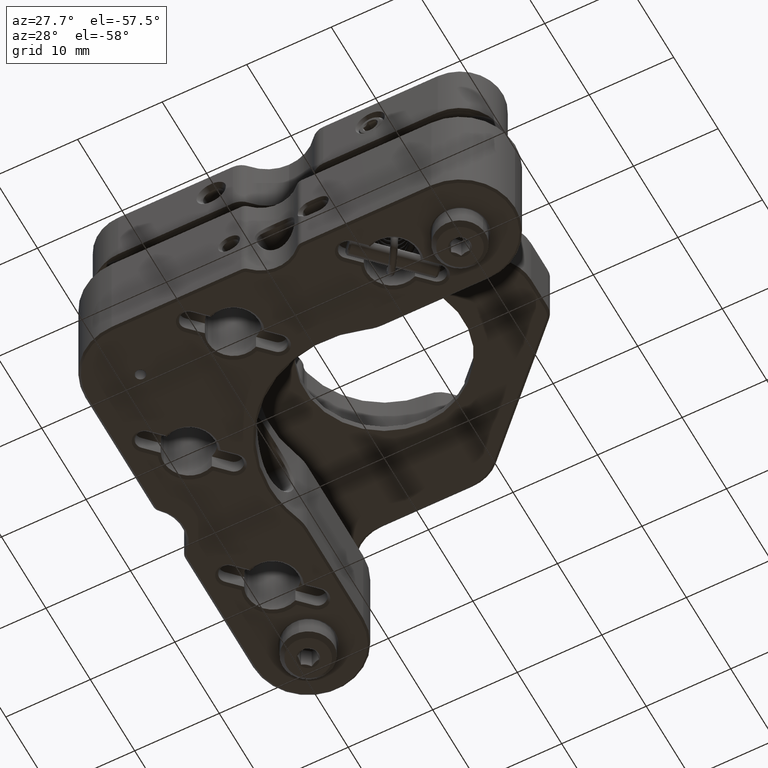
[diagram: clean part render]
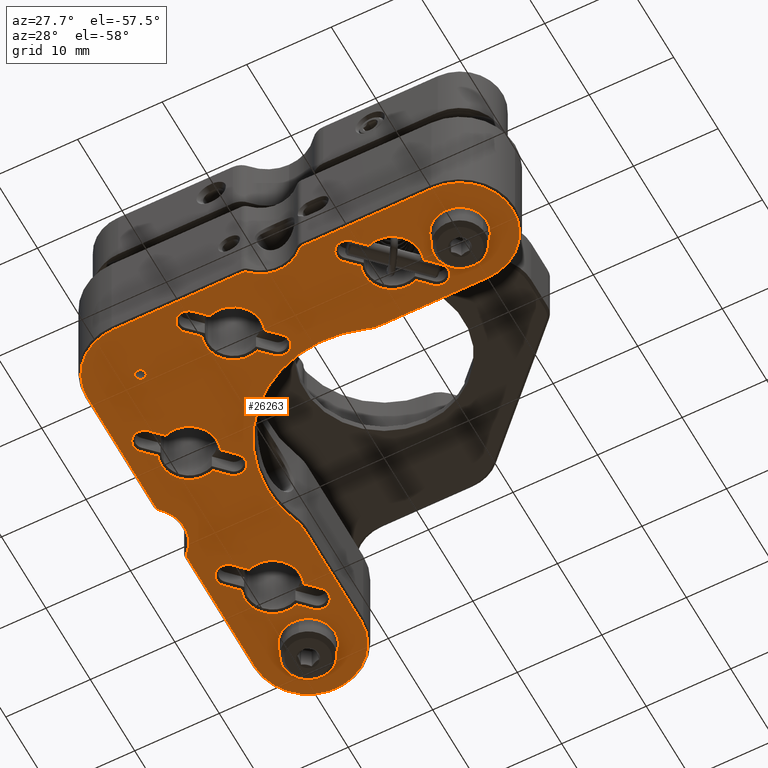
[diagram: same view with one face highlighted and labeled with its STEP entity id]
A machine part, auxiliary view. The second image highlights one B-rep face of the part: STEP entity #26263.
In plain terms, the highlighted planar face has unit normal (0, 0, 1).
Its self-contained STEP definition (entity closure, byte-faithful):
#39 = VERTEX_POINT ( 'NONE', #18534 ) ;
#43 = ORIENTED_EDGE ( 'NONE', *, *, #18699, .T. ) ;
#75 = CARTESIAN_POINT ( 'NONE',  ( -21.98385458958858507, -9.074666280384898087, -6.349999999999999645 ) ) ;
#86 = DIRECTION ( 'NONE',  ( 1.000000000000000000, 0.000000000000000000, 0.000000000000000000 ) ) ;
#104 = DIRECTION ( 'NONE',  ( 1.000000000000000000, 2.593992276867313395E-16, 0.000000000000000000 ) ) ;
#120 = AXIS2_PLACEMENT_3D ( 'NONE', #20159, #19590, #13066 ) ;
#130 = VERTEX_POINT ( 'NONE', #4482 ) ;
#141 = PLANE ( 'NONE',  #25660 ) ;
#160 = LINE ( 'NONE', #26552, #2385 ) ;
#174 = EDGE_LOOP ( 'NONE', ( #25861, #5768 ) ) ;
#222 = EDGE_CURVE ( 'NONE', #13770, #3741, #6745, .T. ) ;
#235 = AXIS2_PLACEMENT_3D ( 'NONE', #25467, #25609, #8707 ) ;
#236 = DIRECTION ( 'NONE',  ( 0.000000000000000000, -0.000000000000000000, -1.000000000000000000 ) ) ;
#238 = DIRECTION ( 'NONE',  ( 1.000000000000000000, 0.000000000000000000, 0.000000000000000000 ) ) ;
#243 = CARTESIAN_POINT ( 'NONE',  ( 18.90000000000000568, -25.15000000000000213, -6.349999999999999645 ) ) ;
#261 = DIRECTION ( 'NONE',  ( -0.000000000000000000, 0.000000000000000000, 1.000000000000000000 ) ) ;
#413 = CARTESIAN_POINT ( 'NONE',  ( -24.39999999999999503, -3.570714214271425657, -6.349999999999999645 ) ) ;
#464 = CARTESIAN_POINT ( 'NONE',  ( 0.000000000000000000, 0.000000000000000000, -6.349999999999999645 ) ) ;
#530 = CARTESIAN_POINT ( 'NONE',  ( -12.71482322781405472, -22.36482322781409593, -6.349999999999999645 ) ) ;
#739 = CIRCLE ( 'NONE', #18414, 1.350000000000010969 ) ;
#817 = ORIENTED_EDGE ( 'NONE', *, *, #6811, .T. ) ;
#931 = DIRECTION ( 'NONE',  ( 1.000000000000000000, 0.000000000000000000, 0.000000000000000000 ) ) ;
#980 = ORIENTED_EDGE ( 'NONE', *, *, #222, .T. ) ;
#999 = ORIENTED_EDGE ( 'NONE', *, *, #1260, .F. ) ;
#1116 = CIRCLE ( 'NONE', #11110, 3.299999999999981615 ) ;
#1134 = EDGE_CURVE ( 'NONE', #16869, #3861, #24399, .T. ) ;
#1146 = LINE ( 'NONE', #19993, #16178 ) ;
#1210 = CIRCLE ( 'NONE', #11165, 6.249999999999992006 ) ;
#1250 = DIRECTION ( 'NONE',  ( -0.000000000000000000, 0.000000000000000000, 1.000000000000000000 ) ) ;
#1260 = EDGE_CURVE ( 'NONE', #27642, #7777, #13129, .T. ) ;
#1286 = ORIENTED_EDGE ( 'NONE', *, *, #3603, .T. ) ;
#1353 = EDGE_CURVE ( 'NONE', #7154, #11378, #11801, .T. ) ;
#1354 = CARTESIAN_POINT ( 'NONE',  ( 15.31941738241597051, -16.38977092678773317, -6.349999999999999645 ) ) ;
#1392 = ORIENTED_EDGE ( 'NONE', *, *, #20429, .T. ) ;
#1394 = CARTESIAN_POINT ( 'NONE',  ( -21.41022907321226398, -12.31941738241589768, -6.349999999999999645 ) ) ;
#1438 = CARTESIAN_POINT ( 'NONE',  ( -3.480582617584083494, -16.38977092678772252, -6.349999999999999645 ) ) ;
#1513 = CARTESIAN_POINT ( 'NONE',  ( -11.36482322781405330, -22.36482322781409593, -6.349999999999999645 ) ) ;
#1547 = DIRECTION ( 'NONE',  ( 1.729328184578211970E-16, -1.000000000000000000, 0.000000000000000000 ) ) ;
#1642 = VERTEX_POINT ( 'NONE', #10982 ) ;
#1769 = CARTESIAN_POINT ( 'NONE',  ( -21.41022907321225688, 6.480582617584138561, -6.349999999999999645 ) ) ;
#1817 = DIRECTION ( 'NONE',  ( -0.000000000000000000, 0.000000000000000000, 1.000000000000000000 ) ) ;
#1855 = CARTESIAN_POINT ( 'NONE',  ( -3.035107082130720002, -24.92500000000000071, -6.349999999999999645 ) ) ;
#1919 = ORIENTED_EDGE ( 'NONE', *, *, #4205, .T. ) ;
#1941 = VECTOR ( 'NONE', #8486, 1000.000000000000000 ) ;
#1998 = CARTESIAN_POINT ( 'NONE',  ( 18.89999999999999858, -18.89999999999999503, -6.349999999999999645 ) ) ;
#2001 = CARTESIAN_POINT ( 'NONE',  ( -18.89999999999999147, -25.14999999999999858, -6.349999999999999645 ) ) ;
#2120 = VERTEX_POINT ( 'NONE', #15687 ) ;
#2142 = EDGE_CURVE ( 'NONE', #10740, #22932, #2958, .T. ) ;
#2167 = CIRCLE ( 'NONE', #5379, 3.174999999999997158 ) ;
#2186 = ORIENTED_EDGE ( 'NONE', *, *, #19268, .T. ) ;
#2213 = DIRECTION ( 'NONE',  ( -0.000000000000000000, 0.000000000000000000, 1.000000000000000000 ) ) ;
#2385 = VECTOR ( 'NONE', #6821, 1000.000000000000000 ) ;
#2394 = LINE ( 'NONE', #7227, #8237 ) ;
#2399 = CARTESIAN_POINT ( 'NONE',  ( 6.480582617584155436, -21.41022907321226754, -6.349999999999999645 ) ) ;
#2436 = DIRECTION ( 'NONE',  ( 0.7071067811865515695, 0.7071067811865435759, 0.000000000000000000 ) ) ;
#2445 = ORIENTED_EDGE ( 'NONE', *, *, #21157, .T. ) ;
#2446 = CARTESIAN_POINT ( 'NONE',  ( -11.36482322781405330, -22.36482322781409593, -6.349999999999999645 ) ) ;
#2472 = ORIENTED_EDGE ( 'NONE', *, *, #6984, .T. ) ;
#2477 = ORIENTED_EDGE ( 'NONE', *, *, #17309, .T. ) ;
#2497 = EDGE_LOOP ( 'NONE', ( #24745, #9138, #18659, #12598, #11284, #17385, #5851, #7419, #24772, #24031, #23708, #980, #6488, #27971, #14632, #17492, #18453, #6036, #24301, #19335 ) ) ;
#2607 = LINE ( 'NONE', #15541, #12010 ) ;
#2622 = CARTESIAN_POINT ( 'NONE',  ( -18.89999999999999503, 10.90000000000005187, -6.349999999999999645 ) ) ;
#2743 = CARTESIAN_POINT ( 'NONE',  ( -12.65000000000000568, 6.284106937345987021, -6.349999999999999645 ) ) ;
#2744 = CARTESIAN_POINT ( 'NONE',  ( -3.570714214271430098, -24.40000000000000568, -6.349999999999999645 ) ) ;
#2797 = CIRCLE ( 'NONE', #18674, 0.7499999999999933387 ) ;
#2828 = AXIS2_PLACEMENT_3D ( 'NONE', #23628, #21643, #23907 ) ;
#2829 = CARTESIAN_POINT ( 'NONE',  ( -0.000000000000000000, -25.14999999999999858, -6.349999999999999645 ) ) ;
#2854 = CARTESIAN_POINT ( 'NONE',  ( -25.14999999999999147, 18.89999999999999503, -6.349999999999999645 ) ) ;
#2860 = CIRCLE ( 'NONE', #21898, 1.350000000000012745 ) ;
#2875 = DIRECTION ( 'NONE',  ( -0.7071067811865434649, -0.7071067811865516806, 0.000000000000000000 ) ) ;
#2897 = DIRECTION ( 'NONE',  ( -0.000000000000000000, 0.000000000000000000, 1.000000000000000000 ) ) ;
#2958 = CIRCLE ( 'NONE', #7933, 0.7499999999999937828 ) ;
#3010 = EDGE_CURVE ( 'NONE', #4601, #6283, #3812, .T. ) ;
#3027 = CIRCLE ( 'NONE', #15745, 6.249999999999995559 ) ;
#3030 = VECTOR ( 'NONE', #2436, 1000.000000000000000 ) ;
#3061 = ORIENTED_EDGE ( 'NONE', *, *, #22651, .T. ) ;
#3080 = VERTEX_POINT ( 'NONE', #7744 ) ;
#3111 = DIRECTION ( 'NONE',  ( -0.7071067811865513475, -0.7071067811865435759, 0.000000000000000000 ) ) ;
#3410 = AXIS2_PLACEMENT_3D ( 'NONE', #21146, #23420, #18886 ) ;
#3477 = AXIS2_PLACEMENT_3D ( 'NONE', #13832, #11695, #14618 ) ;
#3603 = EDGE_CURVE ( 'NONE', #11261, #9604, #27863, .T. ) ;
#3625 = DIRECTION ( 'NONE',  ( -0.000000000000000000, 0.000000000000000000, 1.000000000000000000 ) ) ;
#3653 = LINE ( 'NONE', #20973, #23717 ) ;
#3698 = EDGE_CURVE ( 'NONE', #130, #16270, #23769, .T. ) ;
#3741 = VERTEX_POINT ( 'NONE', #10365 ) ;
#3791 = ORIENTED_EDGE ( 'NONE', *, *, #19473, .T. ) ;
#3812 = CIRCLE ( 'NONE', #10621, 1.350000000000000533 ) ;
#3844 = DIRECTION ( 'NONE',  ( -0.000000000000000000, 0.000000000000000000, 1.000000000000000000 ) ) ;
#3861 = VERTEX_POINT ( 'NONE', #2399 ) ;
#3903 = VECTOR ( 'NONE', #104, 1000.000000000000000 ) ;
#3945 = CARTESIAN_POINT ( 'NONE',  ( -23.31941738241592077, -10.41022907321222135, -6.349999999999999645 ) ) ;
#3949 = CARTESIAN_POINT ( 'NONE',  ( -15.85459415460175414, 15.85459415460193888, -6.349999999999999645 ) ) ;
#3953 = CARTESIAN_POINT ( 'NONE',  ( -24.39999999999999503, 3.570714214271426545, -6.349999999999999645 ) ) ;
#4175 = ORIENTED_EDGE ( 'NONE', *, *, #27643, .T. ) ;
#4205 = EDGE_CURVE ( 'NONE', #9604, #16869, #20632, .T. ) ;
#4257 = DIRECTION ( 'NONE',  ( 0.000000000000000000, -0.000000000000000000, -1.000000000000000000 ) ) ;
#4370 = EDGE_CURVE ( 'NONE', #20071, #19613, #20487, .T. ) ;
#4482 = CARTESIAN_POINT ( 'NONE',  ( -6.725333719615075978, -15.81614541041137123, -6.349999999999999645 ) ) ;
#4517 = EDGE_CURVE ( 'NONE', #25822, #25729, #24074, .T. ) ;
#4601 = VERTEX_POINT ( 'NONE', #530 ) ;
#4659 = CARTESIAN_POINT ( 'NONE',  ( -18.89999999999999858, 18.89999999999999503, -6.349999999999999645 ) ) ;
#4843 = AXIS2_PLACEMENT_3D ( 'NONE', #15417, #24048, #17118 ) ;
#4852 = DIRECTION ( 'NONE',  ( 1.000000000000000000, 0.000000000000000000, 0.000000000000000000 ) ) ;
#4936 = LINE ( 'NONE', #13453, #3903 ) ;
#4957 = DIRECTION ( 'NONE',  ( -1.000000000000000000, 0.000000000000000000, 0.000000000000000000 ) ) ;
#5257 = EDGE_CURVE ( 'NONE', #3861, #39, #6889, .T. ) ;
#5270 = CARTESIAN_POINT ( 'NONE',  ( -22.36482322781409948, 7.435176772185988270, -6.349999999999999645 ) ) ;
#5293 = EDGE_CURVE ( 'NONE', #23084, #9639, #8710, .T. ) ;
#5372 = CARTESIAN_POINT ( 'NONE',  ( -18.89999999999999147, -18.90000000000000568, -6.349999999999999645 ) ) ;
#5379 = AXIS2_PLACEMENT_3D ( 'NONE', #1998, #23847, #23571 ) ;
#5394 = CARTESIAN_POINT ( 'NONE',  ( -4.816145410411395211, -17.72533371961504756, -6.349999999999999645 ) ) ;
#5508 = DIRECTION ( 'NONE',  ( -1.365923996832131609E-16, 1.000000000000000000, 0.000000000000000000 ) ) ;
#5526 = AXIS2_PLACEMENT_3D ( 'NONE', #6107, #19301, #25833 ) ;
#5555 = DIRECTION ( 'NONE',  ( 1.000000000000000000, 0.000000000000000000, 0.000000000000000000 ) ) ;
#5610 = VERTEX_POINT ( 'NONE', #16536 ) ;
#5661 = CIRCLE ( 'NONE', #9724, 0.7499999999999937828 ) ;
#5684 = DIRECTION ( 'NONE',  ( -0.000000000000000000, 0.000000000000000000, 1.000000000000000000 ) ) ;
#5687 = AXIS2_PLACEMENT_3D ( 'NONE', #11268, #2897, #18752 ) ;
#5748 = CIRCLE ( 'NONE', #22520, 1.349999999999990097 ) ;
#5768 = ORIENTED_EDGE ( 'NONE', *, *, #4370, .T. ) ;
#5817 = LINE ( 'NONE', #24983, #17365 ) ;
#5851 = ORIENTED_EDGE ( 'NONE', *, *, #17313, .T. ) ;
#5953 = LINE ( 'NONE', #1438, #15222 ) ;
#6030 = CARTESIAN_POINT ( 'NONE',  ( -15.43517677218589412, 14.36482322781411725, -6.349999999999999645 ) ) ;
#6036 = ORIENTED_EDGE ( 'NONE', *, *, #15071, .T. ) ;
#6107 = CARTESIAN_POINT ( 'NONE',  ( -22.36482322781409238, -11.36482322781405863, -6.349999999999999645 ) ) ;
#6117 = CARTESIAN_POINT ( 'NONE',  ( -4.435176772185928762, -15.43517677218589057, -6.349999999999999645 ) ) ;
#6170 = VERTEX_POINT ( 'NONE', #12109 ) ;
#6220 = CARTESIAN_POINT ( 'NONE',  ( -15.72500000000000320, 18.89999999999999503, -6.349999999999999645 ) ) ;
#6246 = FACE_BOUND ( 'NONE', #13079, .T. ) ;
#6256 = DIRECTION ( 'NONE',  ( 1.000000000000000000, 0.000000000000000000, 0.000000000000000000 ) ) ;
#6283 = VERTEX_POINT ( 'NONE', #27284 ) ;
#6327 = VECTOR ( 'NONE', #26374, 999.9999999999998863 ) ;
#6345 = DIRECTION ( 'NONE',  ( 1.000000000000000000, 0.000000000000000000, 0.000000000000000000 ) ) ;
#6380 = DIRECTION ( 'NONE',  ( 1.000000000000000000, 0.000000000000000000, 0.000000000000000000 ) ) ;
#6455 = VERTEX_POINT ( 'NONE', #23297 ) ;
#6475 = DIRECTION ( 'NONE',  ( -0.000000000000000000, 0.000000000000000000, 1.000000000000000000 ) ) ;
#6477 = AXIS2_PLACEMENT_3D ( 'NONE', #5270, #5684, #18606 ) ;
#6483 = CARTESIAN_POINT ( 'NONE',  ( 7.600000000000047606, -18.89999999999999147, -6.349999999999999645 ) ) ;
#6488 = ORIENTED_EDGE ( 'NONE', *, *, #21312, .T. ) ;
#6534 = EDGE_CURVE ( 'NONE', #18538, #21642, #6935, .T. ) ;
#6638 = EDGE_CURVE ( 'NONE', #8066, #6455, #17837, .T. ) ;
#6645 = DIRECTION ( 'NONE',  ( 0.7071067811865516806, 0.7071067811865434649, 0.000000000000000000 ) ) ;
#6662 = CIRCLE ( 'NONE', #4843, 3.299999999999981615 ) ;
#6718 = ORIENTED_EDGE ( 'NONE', *, *, #11583, .T. ) ;
#6745 = CIRCLE ( 'NONE', #9951, 6.249999999999992006 ) ;
#6803 = DIRECTION ( 'NONE',  ( -1.000000000000000000, 0.000000000000000000, 0.000000000000000000 ) ) ;
#6811 = EDGE_CURVE ( 'NONE', #1642, #27440, #5817, .T. ) ;
#6821 = DIRECTION ( 'NONE',  ( -1.365923996832131609E-16, 1.000000000000000000, 0.000000000000000000 ) ) ;
#6887 = EDGE_CURVE ( 'NONE', #24402, #10224, #11015, .T. ) ;
#6889 = CIRCLE ( 'NONE', #2828, 1.349999999999991873 ) ;
#6935 = CIRCLE ( 'NONE', #19175, 6.249999999999995559 ) ;
#6984 = EDGE_CURVE ( 'NONE', #6283, #7379, #23807, .T. ) ;
#7046 = ORIENTED_EDGE ( 'NONE', *, *, #26941, .T. ) ;
#7133 = DIRECTION ( 'NONE',  ( 1.000000000000000000, 0.000000000000000000, 0.000000000000000000 ) ) ;
#7154 = VERTEX_POINT ( 'NONE', #6220 ) ;
#7174 = VERTEX_POINT ( 'NONE', #12737 ) ;
#7224 = CARTESIAN_POINT ( 'NONE',  ( -18.89999999999999147, -18.90000000000000568, -6.349999999999999645 ) ) ;
#7227 = CARTESIAN_POINT ( 'NONE',  ( -6.454594154601736022, 6.454594154601807077, -6.349999999999999645 ) ) ;
#7265 = CARTESIAN_POINT ( 'NONE',  ( 9.867447959678141700, -21.84174034952559751, -6.349999999999999645 ) ) ;
#7337 = CARTESIAN_POINT ( 'NONE',  ( -24.92499999999999361, 3.035107082130719114, -6.349999999999999645 ) ) ;
#7342 = DIRECTION ( 'NONE',  ( -1.000000000000000000, 0.000000000000000000, 0.000000000000000000 ) ) ;
#7379 = VERTEX_POINT ( 'NONE', #11176 ) ;
#7419 = ORIENTED_EDGE ( 'NONE', *, *, #25532, .T. ) ;
#7430 = VECTOR ( 'NONE', #6645, 1000.000000000000000 ) ;
#7525 = DIRECTION ( 'NONE',  ( -0.7071067811865434649, -0.7071067811865516806, 0.000000000000000000 ) ) ;
#7529 = AXIS2_PLACEMENT_3D ( 'NONE', #10480, #27387, #14212 ) ;
#7602 = CARTESIAN_POINT ( 'NONE',  ( 7.816145410411470706, -20.07466628038496737, -6.349999999999999645 ) ) ;
#7623 = DIRECTION ( 'NONE',  ( 1.000000000000000000, 0.000000000000000000, 0.000000000000000000 ) ) ;
#7719 = LINE ( 'NONE', #1354, #22005 ) ;
#7744 = CARTESIAN_POINT ( 'NONE',  ( -23.71482322781408314, -11.36482322781405863, -6.349999999999999645 ) ) ;
#7777 = VERTEX_POINT ( 'NONE', #10313 ) ;
#7933 = AXIS2_PLACEMENT_3D ( 'NONE', #2744, #13844, #931 ) ;
#8055 = DIRECTION ( 'NONE',  ( -0.000000000000000000, 0.000000000000000000, 1.000000000000000000 ) ) ;
#8066 = VERTEX_POINT ( 'NONE', #9727 ) ;
#8237 = VECTOR ( 'NONE', #3111, 1000.000000000000114 ) ;
#8307 = VECTOR ( 'NONE', #24540, 1000.000000000000000 ) ;
#8338 = CARTESIAN_POINT ( 'NONE',  ( -25.14999999999998792, 3.570714214271426101, -6.349999999999999645 ) ) ;
#8342 = LINE ( 'NONE', #3949, #1941 ) ;
#8346 = DIRECTION ( 'NONE',  ( 1.000000000000000000, 0.000000000000000000, 0.000000000000000000 ) ) ;
#8377 = DIRECTION ( 'NONE',  ( 1.000000000000000000, 0.000000000000000000, 0.000000000000000000 ) ) ;
#8440 = CIRCLE ( 'NONE', #17997, 4.250000000000009770 ) ;
#8463 = CARTESIAN_POINT ( 'NONE',  ( 18.89999999999999858, -18.89999999999999503, -6.349999999999999645 ) ) ;
#8486 = DIRECTION ( 'NONE',  ( -0.7071067811865516806, -0.7071067811865434649, 0.000000000000000000 ) ) ;
#8626 = DIRECTION ( 'NONE',  ( 1.000000000000000000, -1.734723475976821491E-15, 0.000000000000000000 ) ) ;
#8643 = FACE_OUTER_BOUND ( 'NONE', #2497, .T. ) ;
#8674 = VERTEX_POINT ( 'NONE', #22054 ) ;
#8707 = DIRECTION ( 'NONE',  ( 1.000000000000000000, 2.921639538487257417E-15, 0.000000000000000000 ) ) ;
#8710 = CIRCLE ( 'NONE', #25046, 4.250000000000007105 ) ;
#8866 = CIRCLE ( 'NONE', #21105, 1.349999999999991873 ) ;
#8882 = CIRCLE ( 'NONE', #10253, 3.299999999999998934 ) ;
#8913 = DIRECTION ( 'NONE',  ( -0.000000000000000000, 0.000000000000000000, 1.000000000000000000 ) ) ;
#8933 = ORIENTED_EDGE ( 'NONE', *, *, #27673, .T. ) ;
#9030 = ORIENTED_EDGE ( 'NONE', *, *, #3010, .T. ) ;
#9063 = DIRECTION ( 'NONE',  ( -0.000000000000000000, 0.000000000000000000, 1.000000000000000000 ) ) ;
#9109 = AXIS2_PLACEMENT_3D ( 'NONE', #464, #13523, #20030 ) ;
#9138 = ORIENTED_EDGE ( 'NONE', *, *, #21198, .T. ) ;
#9157 = AXIS2_PLACEMENT_3D ( 'NONE', #12992, #2213, #86 ) ;
#9273 = EDGE_CURVE ( 'NONE', #6455, #130, #1146, .T. ) ;
#9298 = EDGE_LOOP ( 'NONE', ( #22843, #999 ) ) ;
#9479 = DIRECTION ( 'NONE',  ( 0.000000000000000000, 0.000000000000000000, -1.000000000000000000 ) ) ;
#9604 = VERTEX_POINT ( 'NONE', #6483 ) ;
#9639 = VERTEX_POINT ( 'NONE', #7337 ) ;
#9640 = DIRECTION ( 'NONE',  ( 1.000000000000000000, 0.000000000000000000, 0.000000000000000000 ) ) ;
#9721 = ORIENTED_EDGE ( 'NONE', *, *, #6638, .T. ) ;
#9724 = AXIS2_PLACEMENT_3D ( 'NONE', #3953, #21694, #8346 ) ;
#9727 = CARTESIAN_POINT ( 'NONE',  ( -3.480582617584084826, -16.38977092678772252, -6.349999999999999645 ) ) ;
#9755 = DIRECTION ( 'NONE',  ( -0.000000000000000000, 0.000000000000000000, 1.000000000000000000 ) ) ;
#9785 = DIRECTION ( 'NONE',  ( -0.7071067811865434649, -0.7071067811865516806, 0.000000000000000000 ) ) ;
#9832 = CARTESIAN_POINT ( 'NONE',  ( 13.98385458958865257, -17.72533371961503690, -6.349999999999999645 ) ) ;
#9833 = CARTESIAN_POINT ( 'NONE',  ( -22.36482322781409948, 7.435176772185988270, -6.349999999999999645 ) ) ;
#9837 = VERTEX_POINT ( 'NONE', #13885 ) ;
#9843 = CIRCLE ( 'NONE', #13471, 0.5999999999999998668 ) ;
#9930 = CARTESIAN_POINT ( 'NONE',  ( -22.19999999999999929, 10.90000000000005187, -6.349999999999999645 ) ) ;
#9951 = AXIS2_PLACEMENT_3D ( 'NONE', #21658, #236, #25915 ) ;
#10062 = VERTEX_POINT ( 'NONE', #16833 ) ;
#10076 = EDGE_CURVE ( 'NONE', #24546, #25822, #19535, .T. ) ;
#10188 = CARTESIAN_POINT ( 'NONE',  ( -12.65000000000000391, -2.187600153491438671E-15, -6.349999999999999645 ) ) ;
#10214 = DIRECTION ( 'NONE',  ( -0.000000000000000000, 0.000000000000000000, 1.000000000000000000 ) ) ;
#10224 = VERTEX_POINT ( 'NONE', #26570 ) ;
#10253 = AXIS2_PLACEMENT_3D ( 'NONE', #24069, #15439, #26067 ) ;
#10265 = EDGE_CURVE ( 'NONE', #10062, #7174, #21329, .T. ) ;
#10295 = CIRCLE ( 'NONE', #26156, 3.300000000000002487 ) ;
#10313 = CARTESIAN_POINT ( 'NONE',  ( -19.49999999999999289, -18.90000000000000568, -6.349999999999999645 ) ) ;
#10347 = CARTESIAN_POINT ( 'NONE',  ( 7.435176772185993599, -22.36482322781409948, -6.349999999999999645 ) ) ;
#10365 = CARTESIAN_POINT ( 'NONE',  ( -12.65000000000000924, 18.89999999999999503, -6.349999999999999645 ) ) ;
#10460 = EDGE_LOOP ( 'NONE', ( #14260, #20437 ) ) ;
#10473 = DIRECTION ( 'NONE',  ( 1.000000000000000000, 0.000000000000000000, 0.000000000000000000 ) ) ;
#10480 = CARTESIAN_POINT ( 'NONE',  ( -18.89999999999999503, 10.90000000000005187, -6.349999999999999645 ) ) ;
#10619 = EDGE_CURVE ( 'NONE', #3080, #22524, #14143, .T. ) ;
#10621 = AXIS2_PLACEMENT_3D ( 'NONE', #1513, #3625, #18812 ) ;
#10640 = FACE_BOUND ( 'NONE', #10460, .T. ) ;
#10740 = VERTEX_POINT ( 'NONE', #1855 ) ;
#10773 = ORIENTED_EDGE ( 'NONE', *, *, #22055, .T. ) ;
#10922 = DIRECTION ( 'NONE',  ( 0.000000000000000000, -0.000000000000000000, -1.000000000000000000 ) ) ;
#10982 = CARTESIAN_POINT ( 'NONE',  ( -10.98385458958860106, -20.07466628038494960, -6.349999999999999645 ) ) ;
#11015 = CIRCLE ( 'NONE', #6477, 1.350000000000010969 ) ;
#11101 = CIRCLE ( 'NONE', #235, 4.749999999999994671 ) ;
#11110 = AXIS2_PLACEMENT_3D ( 'NONE', #19689, #261, #21818 ) ;
#11152 = DIRECTION ( 'NONE',  ( -0.000000000000000000, 0.000000000000000000, 1.000000000000000000 ) ) ;
#11163 = DIRECTION ( 'NONE',  ( -0.7071067811865516806, -0.7071067811865434649, 0.000000000000000000 ) ) ;
#11165 = AXIS2_PLACEMENT_3D ( 'NONE', #15053, #10922, #19573 ) ;
#11176 = CARTESIAN_POINT ( 'NONE',  ( -9.074666280384922956, -21.98385458958858862, -6.349999999999999645 ) ) ;
#11246 = DIRECTION ( 'NONE',  ( -0.000000000000000000, 0.000000000000000000, 1.000000000000000000 ) ) ;
#11261 = VERTEX_POINT ( 'NONE', #24452 ) ;
#11268 = CARTESIAN_POINT ( 'NONE',  ( 10.90000000000005542, -18.89999999999999147, -6.349999999999999645 ) ) ;
#11278 = DIRECTION ( 'NONE',  ( -0.000000000000000000, 0.000000000000000000, 1.000000000000000000 ) ) ;
#11284 = ORIENTED_EDGE ( 'NONE', *, *, #18882, .T. ) ;
#11312 = VERTEX_POINT ( 'NONE', #22884 ) ;
#11378 = VERTEX_POINT ( 'NONE', #22745 ) ;
#11405 = CARTESIAN_POINT ( 'NONE',  ( -25.14999999999998437, -18.90000000000000924, -6.349999999999999645 ) ) ;
#11425 = EDGE_CURVE ( 'NONE', #10224, #17119, #739, .T. ) ;
#11437 = DIRECTION ( 'NONE',  ( 1.000000000000000000, 0.000000000000000000, 0.000000000000000000 ) ) ;
#11481 = VERTEX_POINT ( 'NONE', #11966 ) ;
#11583 = EDGE_CURVE ( 'NONE', #13146, #19059, #1116, .T. ) ;
#11674 = CARTESIAN_POINT ( 'NONE',  ( -17.72533371961505821, 13.98385458958865613, -6.349999999999999645 ) ) ;
#11695 = DIRECTION ( 'NONE',  ( -0.000000000000000000, 0.000000000000000000, 1.000000000000000000 ) ) ;
#11801 = CIRCLE ( 'NONE', #18971, 3.174999999999997158 ) ;
#11883 = VERTEX_POINT ( 'NONE', #19425 ) ;
#11906 = DIRECTION ( 'NONE',  ( 0.7071067811865515695, 0.7071067811865435759, 0.000000000000000000 ) ) ;
#11966 = CARTESIAN_POINT ( 'NONE',  ( -15.81614541041137834, 12.07466628038495671, -6.349999999999999645 ) ) ;
#11977 = EDGE_CURVE ( 'NONE', #9639, #15696, #5661, .T. ) ;
#11994 = ORIENTED_EDGE ( 'NONE', *, *, #6887, .T. ) ;
#12010 = VECTOR ( 'NONE', #15401, 1000.000000000000000 ) ;
#12109 = CARTESIAN_POINT ( 'NONE',  ( -14.48058261758404441, -5.389770926787786465, -6.349999999999999645 ) ) ;
#12126 = DIRECTION ( 'NONE',  ( 0.7071067811865434649, 0.7071067811865516806, 0.000000000000000000 ) ) ;
#12326 = DIRECTION ( 'NONE',  ( 0.000000000000000000, -0.000000000000000000, -1.000000000000000000 ) ) ;
#12339 = CARTESIAN_POINT ( 'NONE',  ( -17.39999999999999858, 6.284106937345987021, -6.349999999999999645 ) ) ;
#12449 = AXIS2_PLACEMENT_3D ( 'NONE', #18851, #8055, #6345 ) ;
#12590 = LINE ( 'NONE', #10188, #22500 ) ;
#12598 = ORIENTED_EDGE ( 'NONE', *, *, #2142, .T. ) ;
#12607 = DIRECTION ( 'NONE',  ( 0.7071067811865435759, 0.7071067811865515695, 0.000000000000000000 ) ) ;
#12664 = ORIENTED_EDGE ( 'NONE', *, *, #24313, .T. ) ;
#12737 = CARTESIAN_POINT ( 'NONE',  ( 4.670620021000373434, -12.93243243243244400, -6.349999999999999645 ) ) ;
#12805 = EDGE_CURVE ( 'NONE', #7174, #2120, #11101, .T. ) ;
#12871 = DIRECTION ( 'NONE',  ( -0.7071067811865513475, -0.7071067811865435759, 0.000000000000000000 ) ) ;
#12909 = VERTEX_POINT ( 'NONE', #11405 ) ;
#12992 = CARTESIAN_POINT ( 'NONE',  ( 0.000000000000000000, 0.000000000000000000, -6.349999999999999645 ) ) ;
#13066 = DIRECTION ( 'NONE',  ( 1.000000000000000000, 0.000000000000000000, 0.000000000000000000 ) ) ;
#13079 = EDGE_LOOP ( 'NONE', ( #2445, #6718, #3061, #7046, #20599, #26964, #10773, #27960, #2186, #20720 ) ) ;
#13129 = CIRCLE ( 'NONE', #20382, 0.5999999999999998668 ) ;
#13146 = VERTEX_POINT ( 'NONE', #22630 ) ;
#13192 = LINE ( 'NONE', #2829, #27915 ) ;
#13227 = LINE ( 'NONE', #21881, #3030 ) ;
#13281 = EDGE_CURVE ( 'NONE', #23900, #13599, #7719, .T. ) ;
#13289 = VECTOR ( 'NONE', #12607, 1000.000000000000000 ) ;
#13323 = CARTESIAN_POINT ( 'NONE',  ( 6.480582617584154548, -21.41022907321226754, -6.349999999999999645 ) ) ;
#13397 = CIRCLE ( 'NONE', #17947, 0.7499999999999937828 ) ;
#13453 = CARTESIAN_POINT ( 'NONE',  ( 3.281400230237156034E-15, -12.65000000000001812, -6.349999999999999645 ) ) ;
#13471 = AXIS2_PLACEMENT_3D ( 'NONE', #5372, #9479, #7342 ) ;
#13482 = VECTOR ( 'NONE', #2875, 999.9999999999998863 ) ;
#13523 = DIRECTION ( 'NONE',  ( -0.000000000000000000, 0.000000000000000000, 1.000000000000000000 ) ) ;
#13599 = VERTEX_POINT ( 'NONE', #15077 ) ;
#13614 = CARTESIAN_POINT ( 'NONE',  ( -12.93243243243243690, 4.670620021000397415, -6.349999999999999645 ) ) ;
#13641 = ORIENTED_EDGE ( 'NONE', *, *, #18733, .T. ) ;
#13670 = VERTEX_POINT ( 'NONE', #21305 ) ;
#13770 = VERTEX_POINT ( 'NONE', #2854 ) ;
#13803 = AXIS2_PLACEMENT_3D ( 'NONE', #20237, #11152, #11437 ) ;
#13832 = CARTESIAN_POINT ( 'NONE',  ( -18.89999999999999858, 18.89999999999999503, -6.349999999999999645 ) ) ;
#13844 = DIRECTION ( 'NONE',  ( 0.000000000000000000, -0.000000000000000000, -1.000000000000000000 ) ) ;
#13885 = CARTESIAN_POINT ( 'NONE',  ( 9.725333719615095518, -21.98385458958864547, -6.349999999999999645 ) ) ;
#13890 = CARTESIAN_POINT ( 'NONE',  ( 6.195044477408373180E-15, -27.89999999999999858, -6.349999999999999645 ) ) ;
#14060 = ORIENTED_EDGE ( 'NONE', *, *, #1134, .T. ) ;
#14143 = CIRCLE ( 'NONE', #5526, 1.349999999999990097 ) ;
#14212 = DIRECTION ( 'NONE',  ( 1.000000000000000000, 0.000000000000000000, 0.000000000000000000 ) ) ;
#14260 = ORIENTED_EDGE ( 'NONE', *, *, #15668, .T. ) ;
#14361 = VECTOR ( 'NONE', #20465, 999.9999999999998863 ) ;
#14441 = CARTESIAN_POINT ( 'NONE',  ( -12.31941738241589768, -21.41022907321226043, -6.349999999999999645 ) ) ;
#14466 = ORIENTED_EDGE ( 'NONE', *, *, #25294, .T. ) ;
#14489 = DIRECTION ( 'NONE',  ( -0.000000000000000000, 0.000000000000000000, 1.000000000000000000 ) ) ;
#14523 = EDGE_CURVE ( 'NONE', #24649, #12909, #1210, .T. ) ;
#14602 = DIRECTION ( 'NONE',  ( 1.000000000000000000, 0.000000000000000000, 0.000000000000000000 ) ) ;
#14618 = DIRECTION ( 'NONE',  ( 1.000000000000000000, 0.000000000000000000, 0.000000000000000000 ) ) ;
#14632 = ORIENTED_EDGE ( 'NONE', *, *, #16544, .T. ) ;
#14701 = DIRECTION ( 'NONE',  ( 1.000000000000000000, 0.000000000000000000, 0.000000000000000000 ) ) ;
#14768 = VERTEX_POINT ( 'NONE', #20140 ) ;
#14788 = DIRECTION ( 'NONE',  ( -0.000000000000000000, 0.000000000000000000, 1.000000000000000000 ) ) ;
#14884 = EDGE_CURVE ( 'NONE', #21642, #21494, #13192, .T. ) ;
#14896 = DIRECTION ( 'NONE',  ( 1.000000000000000000, 0.000000000000000000, 0.000000000000000000 ) ) ;
#14913 = FACE_BOUND ( 'NONE', #19508, .T. ) ;
#14918 = ORIENTED_EDGE ( 'NONE', *, *, #4517, .T. ) ;
#14987 = DIRECTION ( 'NONE',  ( 1.000000000000000000, 0.000000000000000000, 0.000000000000000000 ) ) ;
#15035 = CARTESIAN_POINT ( 'NONE',  ( -13.94540584539807426, 13.94540584539823591, -6.349999999999999645 ) ) ;
#15053 = CARTESIAN_POINT ( 'NONE',  ( -18.89999999999999147, -18.90000000000000568, -6.349999999999999645 ) ) ;
#15071 = EDGE_CURVE ( 'NONE', #2120, #14768, #4936, .T. ) ;
#15077 = CARTESIAN_POINT ( 'NONE',  ( 15.31941738241597051, -16.38977092678773317, -6.349999999999999645 ) ) ;
#15222 = VECTOR ( 'NONE', #18611, 1000.000000000000000 ) ;
#15290 = CARTESIAN_POINT ( 'NONE',  ( 15.72500000000000320, -18.89999999999999503, -6.349999999999999645 ) ) ;
#15306 = LINE ( 'NONE', #27784, #18883 ) ;
#15320 = DIRECTION ( 'NONE',  ( 0.000000000000000000, -0.000000000000000000, -1.000000000000000000 ) ) ;
#15322 = EDGE_CURVE ( 'NONE', #15696, #13770, #22386, .T. ) ;
#15401 = DIRECTION ( 'NONE',  ( 0.7071067811865516806, 0.7071067811865434649, 0.000000000000000000 ) ) ;
#15417 = CARTESIAN_POINT ( 'NONE',  ( -18.89999999999999147, -7.899999999999997691, -6.349999999999999645 ) ) ;
#15439 = DIRECTION ( 'NONE',  ( -0.000000000000000000, 0.000000000000000000, 1.000000000000000000 ) ) ;
#15489 = EDGE_CURVE ( 'NONE', #7777, #27642, #9843, .T. ) ;
#15503 = EDGE_CURVE ( 'NONE', #22163, #10740, #8440, .T. ) ;
#15541 = CARTESIAN_POINT ( 'NONE',  ( -13.94540584539807426, 13.94540584539823591, -6.349999999999999645 ) ) ;
#15652 = CARTESIAN_POINT ( 'NONE',  ( -16.38977092678773317, 15.31941738241596340, -6.349999999999999645 ) ) ;
#15655 = CARTESIAN_POINT ( 'NONE',  ( -22.36482322781409238, -11.36482322781405863, -6.349999999999999645 ) ) ;
#15668 = EDGE_CURVE ( 'NONE', #11378, #7154, #24315, .T. ) ;
#15687 = CARTESIAN_POINT ( 'NONE',  ( 6.284106937345952382, -12.65000000000001812, -6.349999999999999645 ) ) ;
#15696 = VERTEX_POINT ( 'NONE', #8338 ) ;
#15745 = AXIS2_PLACEMENT_3D ( 'NONE', #23122, #12326, #14602 ) ;
#15807 = CIRCLE ( 'NONE', #24336, 4.749999999999993783 ) ;
#15906 = EDGE_LOOP ( 'NONE', ( #14918, #15912, #26522, #21609, #11994, #23245, #43, #27401, #1392, #19988 ) ) ;
#15912 = ORIENTED_EDGE ( 'NONE', *, *, #19902, .T. ) ;
#16049 = VERTEX_POINT ( 'NONE', #13614 ) ;
#16078 = AXIS2_PLACEMENT_3D ( 'NONE', #27765, #6475, #238 ) ;
#16178 = VECTOR ( 'NONE', #9785, 999.9999999999998863 ) ;
#16185 = DIRECTION ( 'NONE',  ( 0.000000000000000000, -0.000000000000000000, -1.000000000000000000 ) ) ;
#16270 = VERTEX_POINT ( 'NONE', #18972 ) ;
#16408 = ORIENTED_EDGE ( 'NONE', *, *, #3698, .T. ) ;
#16536 = CARTESIAN_POINT ( 'NONE',  ( -25.14999999999998792, -3.570714214271426101, -6.349999999999999645 ) ) ;
#16544 = EDGE_CURVE ( 'NONE', #16049, #10062, #17329, .T. ) ;
#16617 = DIRECTION ( 'NONE',  ( 1.000000000000000000, 0.000000000000000000, 0.000000000000000000 ) ) ;
#16688 = AXIS2_PLACEMENT_3D ( 'NONE', #27830, #3844, #8377 ) ;
#16824 = DIRECTION ( 'NONE',  ( 1.000000000000000000, 0.000000000000000000, 0.000000000000000000 ) ) ;
#16833 = CARTESIAN_POINT ( 'NONE',  ( -13.75000000000000533, 0.000000000000000000, -6.349999999999999645 ) ) ;
#16869 = VERTEX_POINT ( 'NONE', #7602 ) ;
#16969 = DIRECTION ( 'NONE',  ( -0.000000000000000000, 0.000000000000000000, 1.000000000000000000 ) ) ;
#17100 = CIRCLE ( 'NONE', #20741, 1.350000000000000533 ) ;
#17118 = DIRECTION ( 'NONE',  ( 1.000000000000000000, 0.000000000000000000, 0.000000000000000000 ) ) ;
#17119 = VERTEX_POINT ( 'NONE', #1769 ) ;
#17180 = CARTESIAN_POINT ( 'NONE',  ( 0.000000000000000000, 0.000000000000000000, -6.349999999999999645 ) ) ;
#17309 = EDGE_CURVE ( 'NONE', #16270, #1642, #18283, .T. ) ;
#17313 = EDGE_CURVE ( 'NONE', #12909, #5610, #160, .T. ) ;
#17329 = CIRCLE ( 'NONE', #9157, 13.75000000000000355 ) ;
#17365 = VECTOR ( 'NONE', #7525, 999.9999999999998863 ) ;
#17385 = ORIENTED_EDGE ( 'NONE', *, *, #14523, .T. ) ;
#17492 = ORIENTED_EDGE ( 'NONE', *, *, #10265, .T. ) ;
#17588 = DIRECTION ( 'NONE',  ( 0.000000000000000000, 0.000000000000000000, -1.000000000000000000 ) ) ;
#17623 = CARTESIAN_POINT ( 'NONE',  ( -24.92499999999999005, -3.035107082130717338, -6.349999999999999645 ) ) ;
#17837 = CIRCLE ( 'NONE', #25527, 1.350000000000002309 ) ;
#17867 = EDGE_CURVE ( 'NONE', #6170, #8674, #2860, .T. ) ;
#17869 = CARTESIAN_POINT ( 'NONE',  ( -22.19999999999997442, -7.899999999999997691, -6.349999999999999645 ) ) ;
#17876 = CARTESIAN_POINT ( 'NONE',  ( 3.570714214271442088, -24.40000000000000568, -6.349999999999999645 ) ) ;
#17901 = EDGE_CURVE ( 'NONE', #24974, #24402, #8342, .T. ) ;
#17932 = CARTESIAN_POINT ( 'NONE',  ( 11.93255204032195316, -15.95825965047437123, -6.349999999999999645 ) ) ;
#17947 = AXIS2_PLACEMENT_3D ( 'NONE', #413, #15320, #8626 ) ;
#17997 = AXIS2_PLACEMENT_3D ( 'NONE', #13890, #9755, #7623 ) ;
#18283 = CIRCLE ( 'NONE', #120, 3.300000000000013145 ) ;
#18414 = AXIS2_PLACEMENT_3D ( 'NONE', #9833, #27924, #10473 ) ;
#18453 = ORIENTED_EDGE ( 'NONE', *, *, #12805, .T. ) ;
#18534 = CARTESIAN_POINT ( 'NONE',  ( 6.085176772186000171, -22.36482322781409948, -6.349999999999999645 ) ) ;
#18538 = VERTEX_POINT ( 'NONE', #23144 ) ;
#18606 = DIRECTION ( 'NONE',  ( 1.000000000000000000, 0.000000000000000000, 0.000000000000000000 ) ) ;
#18611 = DIRECTION ( 'NONE',  ( 0.7071067811865435759, 0.7071067811865515695, 0.000000000000000000 ) ) ;
#18659 = ORIENTED_EDGE ( 'NONE', *, *, #15503, .T. ) ;
#18674 = AXIS2_PLACEMENT_3D ( 'NONE', #17876, #16185, #9640 ) ;
#18699 = EDGE_CURVE ( 'NONE', #17119, #20178, #21692, .T. ) ;
#18733 = EDGE_CURVE ( 'NONE', #13599, #13670, #22851, .T. ) ;
#18752 = DIRECTION ( 'NONE',  ( 1.000000000000000000, 0.000000000000000000, 0.000000000000000000 ) ) ;
#18812 = DIRECTION ( 'NONE',  ( 1.000000000000000000, 0.000000000000000000, 0.000000000000000000 ) ) ;
#18851 = CARTESIAN_POINT ( 'NONE',  ( 10.90000000000005542, -18.89999999999999147, -6.349999999999999645 ) ) ;
#18882 = EDGE_CURVE ( 'NONE', #22932, #24649, #24685, .T. ) ;
#18883 = VECTOR ( 'NONE', #12871, 1000.000000000000114 ) ;
#18886 = DIRECTION ( 'NONE',  ( 1.000000000000000000, 0.000000000000000000, 0.000000000000000000 ) ) ;
#18899 = VECTOR ( 'NONE', #5508, 1000.000000000000000 ) ;
#18971 = AXIS2_PLACEMENT_3D ( 'NONE', #4659, #9063, #16824 ) ;
#18972 = CARTESIAN_POINT ( 'NONE',  ( -11.20000000000000462, -18.89999999999999147, -6.349999999999999645 ) ) ;
#19059 = VERTEX_POINT ( 'NONE', #17869 ) ;
#19175 = AXIS2_PLACEMENT_3D ( 'NONE', #27693, #4257, #6256 ) ;
#19268 = EDGE_CURVE ( 'NONE', #11883, #6170, #3653, .T. ) ;
#19301 = DIRECTION ( 'NONE',  ( -0.000000000000000000, 0.000000000000000000, 1.000000000000000000 ) ) ;
#19335 = ORIENTED_EDGE ( 'NONE', *, *, #6534, .T. ) ;
#19360 = CARTESIAN_POINT ( 'NONE',  ( -20.07466628038495315, 7.816145410411461825, -6.349999999999999645 ) ) ;
#19414 = CARTESIAN_POINT ( 'NONE',  ( -8.932552040321901643, -21.84174034952559751, -6.349999999999999645 ) ) ;
#19425 = CARTESIAN_POINT ( 'NONE',  ( -15.81614541041138899, -6.725333719615086636, -6.349999999999999645 ) ) ;
#19473 = EDGE_CURVE ( 'NONE', #9837, #23900, #26480, .T. ) ;
#19508 = EDGE_LOOP ( 'NONE', ( #3791, #27715, #13641, #4175, #1286, #1919, #14060, #20828, #27243, #25177 ) ) ;
#19535 = CIRCLE ( 'NONE', #21792, 1.350000000000007416 ) ;
#19573 = DIRECTION ( 'NONE',  ( 1.000000000000000000, 0.000000000000000000, 0.000000000000000000 ) ) ;
#19590 = DIRECTION ( 'NONE',  ( -0.000000000000000000, 0.000000000000000000, 1.000000000000000000 ) ) ;
#19613 = VERTEX_POINT ( 'NONE', #15290 ) ;
#19647 = CARTESIAN_POINT ( 'NONE',  ( -27.89999999999999858, 0.000000000000000000, -6.349999999999999645 ) ) ;
#19689 = CARTESIAN_POINT ( 'NONE',  ( -18.89999999999999147, -7.899999999999997691, -6.349999999999999645 ) ) ;
#19743 = CIRCLE ( 'NONE', #7529, 3.300000000000006040 ) ;
#19902 = EDGE_CURVE ( 'NONE', #25729, #26489, #22397, .T. ) ;
#19933 = DIRECTION ( 'NONE',  ( 1.000000000000000000, 0.000000000000000000, 0.000000000000000000 ) ) ;
#19988 = ORIENTED_EDGE ( 'NONE', *, *, #10076, .T. ) ;
#19993 = CARTESIAN_POINT ( 'NONE',  ( -6.867447959678086633, -15.95825965047438544, -6.349999999999999645 ) ) ;
#20030 = DIRECTION ( 'NONE',  ( 1.000000000000000000, 0.000000000000000000, 0.000000000000000000 ) ) ;
#20071 = VERTEX_POINT ( 'NONE', #27056 ) ;
#20094 = AXIS2_PLACEMENT_3D ( 'NONE', #27940, #8913, #23680 ) ;
#20140 = CARTESIAN_POINT ( 'NONE',  ( 18.90000000000000568, -12.65000000000001279, -6.349999999999999645 ) ) ;
#20159 = CARTESIAN_POINT ( 'NONE',  ( -7.899999999999994138, -18.89999999999999147, -6.349999999999999645 ) ) ;
#20178 = VERTEX_POINT ( 'NONE', #19360 ) ;
#20237 = CARTESIAN_POINT ( 'NONE',  ( -18.89999999999999503, 10.90000000000005187, -6.349999999999999645 ) ) ;
#20321 = LINE ( 'NONE', #7265, #14361 ) ;
#20382 = AXIS2_PLACEMENT_3D ( 'NONE', #7224, #17588, #4957 ) ;
#20395 = VERTEX_POINT ( 'NONE', #2743 ) ;
#20429 = EDGE_CURVE ( 'NONE', #11481, #24546, #2607, .T. ) ;
#20437 = ORIENTED_EDGE ( 'NONE', *, *, #1353, .T. ) ;
#20465 = DIRECTION ( 'NONE',  ( 0.7071067811865434649, 0.7071067811865516806, 0.000000000000000000 ) ) ;
#20487 = CIRCLE ( 'NONE', #21847, 3.174999999999997158 ) ;
#20599 = ORIENTED_EDGE ( 'NONE', *, *, #22214, .T. ) ;
#20632 = CIRCLE ( 'NONE', #12449, 3.300000000000007816 ) ;
#20720 = ORIENTED_EDGE ( 'NONE', *, *, #17867, .T. ) ;
#20741 = AXIS2_PLACEMENT_3D ( 'NONE', #2446, #11246, #7133 ) ;
#20828 = ORIENTED_EDGE ( 'NONE', *, *, #5257, .T. ) ;
#20848 = CARTESIAN_POINT ( 'NONE',  ( 3.570714214271442088, -25.14999999999999858, -6.349999999999999645 ) ) ;
#20973 = CARTESIAN_POINT ( 'NONE',  ( -4.545405845398047262, 4.545405845398098776, -6.349999999999999645 ) ) ;
#21105 = AXIS2_PLACEMENT_3D ( 'NONE', #10347, #14489, #16617 ) ;
#21146 = CARTESIAN_POINT ( 'NONE',  ( -7.899999999999994138, -18.89999999999999147, -6.349999999999999645 ) ) ;
#21157 = EDGE_CURVE ( 'NONE', #8674, #13146, #2394, .T. ) ;
#21198 = EDGE_CURVE ( 'NONE', #21494, #22163, #2797, .T. ) ;
#21241 = VERTEX_POINT ( 'NONE', #5394 ) ;
#21305 = CARTESIAN_POINT ( 'NONE',  ( 13.41022907321226221, -14.48058261758404441, -6.349999999999999645 ) ) ;
#21312 = EDGE_CURVE ( 'NONE', #3741, #20395, #12590, .T. ) ;
#21329 = CIRCLE ( 'NONE', #9109, 13.75000000000000355 ) ;
#21423 = FACE_BOUND ( 'NONE', #21572, .T. ) ;
#21494 = VERTEX_POINT ( 'NONE', #20848 ) ;
#21572 = EDGE_LOOP ( 'NONE', ( #26202, #16408, #2477, #817, #8933, #9030, #2472, #12664, #14466, #9721 ) ) ;
#21609 = ORIENTED_EDGE ( 'NONE', *, *, #17901, .T. ) ;
#21642 = VERTEX_POINT ( 'NONE', #243 ) ;
#21643 = DIRECTION ( 'NONE',  ( -0.000000000000000000, 0.000000000000000000, 1.000000000000000000 ) ) ;
#21658 = CARTESIAN_POINT ( 'NONE',  ( -18.89999999999999858, 18.89999999999999503, -6.349999999999999645 ) ) ;
#21691 = EDGE_CURVE ( 'NONE', #22773, #11883, #8882, .T. ) ;
#21692 = LINE ( 'NONE', #15035, #7430 ) ;
#21694 = DIRECTION ( 'NONE',  ( 0.000000000000000000, -0.000000000000000000, -1.000000000000000000 ) ) ;
#21792 = AXIS2_PLACEMENT_3D ( 'NONE', #6030, #1250, #14701 ) ;
#21818 = DIRECTION ( 'NONE',  ( 1.000000000000000000, 0.000000000000000000, 0.000000000000000000 ) ) ;
#21847 = AXIS2_PLACEMENT_3D ( 'NONE', #8463, #1817, #25646 ) ;
#21881 = CARTESIAN_POINT ( 'NONE',  ( -4.545405845398062361, 4.545405845398112987, -6.349999999999999645 ) ) ;
#21898 = AXIS2_PLACEMENT_3D ( 'NONE', #27800, #10214, #14896 ) ;
#22005 = VECTOR ( 'NONE', #12126, 999.9999999999998863 ) ;
#22033 = LINE ( 'NONE', #17932, #13482 ) ;
#22054 = CARTESIAN_POINT ( 'NONE',  ( -16.38977092678772962, -3.480582617584078164, -6.349999999999999645 ) ) ;
#22055 = EDGE_CURVE ( 'NONE', #22524, #22773, #13227, .T. ) ;
#22163 = VERTEX_POINT ( 'NONE', #26714 ) ;
#22214 = EDGE_CURVE ( 'NONE', #24876, #3080, #5748, .T. ) ;
#22315 = CARTESIAN_POINT ( 'NONE',  ( -18.29999999999999361, -18.90000000000000568, -6.349999999999999645 ) ) ;
#22386 = LINE ( 'NONE', #22814, #18899 ) ;
#22397 = CIRCLE ( 'NONE', #13803, 3.300000000000002487 ) ;
#22500 = VECTOR ( 'NONE', #1547, 1000.000000000000000 ) ;
#22520 = AXIS2_PLACEMENT_3D ( 'NONE', #15655, #24290, #4852 ) ;
#22524 = VERTEX_POINT ( 'NONE', #1394 ) ;
#22630 = CARTESIAN_POINT ( 'NONE',  ( -17.72533371961507598, -4.816145410411405869, -6.349999999999999645 ) ) ;
#22639 = VERTEX_POINT ( 'NONE', #75 ) ;
#22651 = EDGE_CURVE ( 'NONE', #19059, #22639, #6662, .T. ) ;
#22745 = CARTESIAN_POINT ( 'NONE',  ( -22.07499999999999574, 18.89999999999999503, -6.349999999999999645 ) ) ;
#22773 = VERTEX_POINT ( 'NONE', #25763 ) ;
#22814 = CARTESIAN_POINT ( 'NONE',  ( -25.14999999999998792, -3.435298852032809592E-15, -6.349999999999999645 ) ) ;
#22843 = ORIENTED_EDGE ( 'NONE', *, *, #15489, .F. ) ;
#22851 = CIRCLE ( 'NONE', #20094, 1.350000000000010969 ) ;
#22884 = CARTESIAN_POINT ( 'NONE',  ( 8.389770926787834426, -23.31941738241592432, -6.349999999999999645 ) ) ;
#22932 = VERTEX_POINT ( 'NONE', #24194 ) ;
#23002 = EDGE_CURVE ( 'NONE', #26489, #24974, #10295, .T. ) ;
#23084 = VERTEX_POINT ( 'NONE', #17623 ) ;
#23122 = CARTESIAN_POINT ( 'NONE',  ( 18.90000000000000568, -18.90000000000000568, -6.349999999999999645 ) ) ;
#23144 = CARTESIAN_POINT ( 'NONE',  ( 25.15000000000000213, -18.90000000000000568, -6.349999999999999645 ) ) ;
#23245 = ORIENTED_EDGE ( 'NONE', *, *, #11425, .T. ) ;
#23297 = CARTESIAN_POINT ( 'NONE',  ( -5.389770926787774918, -14.48058261758405330, -6.349999999999999645 ) ) ;
#23399 = CARTESIAN_POINT ( 'NONE',  ( -21.98385458958861349, 9.725333719615150585, -6.349999999999999645 ) ) ;
#23420 = DIRECTION ( 'NONE',  ( -0.000000000000000000, 0.000000000000000000, 1.000000000000000000 ) ) ;
#23434 = DIRECTION ( 'NONE',  ( 1.000000000000000000, 0.000000000000000000, 0.000000000000000000 ) ) ;
#23562 = FACE_BOUND ( 'NONE', #174, .T. ) ;
#23571 = DIRECTION ( 'NONE',  ( 1.000000000000000000, 0.000000000000000000, 0.000000000000000000 ) ) ;
#23628 = CARTESIAN_POINT ( 'NONE',  ( 7.435176772185993599, -22.36482322781409948, -6.349999999999999645 ) ) ;
#23680 = DIRECTION ( 'NONE',  ( 1.000000000000000000, 0.000000000000000000, 0.000000000000000000 ) ) ;
#23708 = ORIENTED_EDGE ( 'NONE', *, *, #15322, .T. ) ;
#23717 = VECTOR ( 'NONE', #11906, 1000.000000000000000 ) ;
#23769 = CIRCLE ( 'NONE', #3410, 3.300000000000013145 ) ;
#23807 = LINE ( 'NONE', #19414, #13289 ) ;
#23847 = DIRECTION ( 'NONE',  ( -0.000000000000000000, 0.000000000000000000, 1.000000000000000000 ) ) ;
#23900 = VERTEX_POINT ( 'NONE', #9832 ) ;
#23907 = DIRECTION ( 'NONE',  ( 1.000000000000000000, 0.000000000000000000, 0.000000000000000000 ) ) ;
#23919 = CIRCLE ( 'NONE', #16688, 3.300000000000000711 ) ;
#23935 = CARTESIAN_POINT ( 'NONE',  ( -15.85459415460175414, 15.85459415460193888, -6.349999999999999645 ) ) ;
#24031 = ORIENTED_EDGE ( 'NONE', *, *, #11977, .T. ) ;
#24048 = DIRECTION ( 'NONE',  ( -0.000000000000000000, 0.000000000000000000, 1.000000000000000000 ) ) ;
#24069 = CARTESIAN_POINT ( 'NONE',  ( -18.89999999999999147, -7.899999999999997691, -6.349999999999999645 ) ) ;
#24074 = LINE ( 'NONE', #23935, #25916 ) ;
#24095 = EDGE_CURVE ( 'NONE', #19613, #20071, #2167, .T. ) ;
#24126 = CARTESIAN_POINT ( 'NONE',  ( -14.48058261758405507, 13.41022907321226754, -6.349999999999999645 ) ) ;
#24194 = CARTESIAN_POINT ( 'NONE',  ( -3.570714214271430098, -25.14999999999999858, -6.349999999999999645 ) ) ;
#24290 = DIRECTION ( 'NONE',  ( -0.000000000000000000, 0.000000000000000000, 1.000000000000000000 ) ) ;
#24301 = ORIENTED_EDGE ( 'NONE', *, *, #26598, .T. ) ;
#24313 = EDGE_CURVE ( 'NONE', #7379, #21241, #23919, .T. ) ;
#24315 = CIRCLE ( 'NONE', #3477, 3.174999999999997158 ) ;
#24336 = AXIS2_PLACEMENT_3D ( 'NONE', #12339, #27528, #5555 ) ;
#24399 = LINE ( 'NONE', #13323, #6327 ) ;
#24402 = VERTEX_POINT ( 'NONE', #25292 ) ;
#24452 = CARTESIAN_POINT ( 'NONE',  ( 12.07466628038496737, -15.81614541041138544, -6.349999999999999645 ) ) ;
#24540 = DIRECTION ( 'NONE',  ( -1.000000000000000000, 0.000000000000000000, 0.000000000000000000 ) ) ;
#24546 = VERTEX_POINT ( 'NONE', #24126 ) ;
#24649 = VERTEX_POINT ( 'NONE', #2001 ) ;
#24685 = LINE ( 'NONE', #26951, #8307 ) ;
#24745 = ORIENTED_EDGE ( 'NONE', *, *, #14884, .T. ) ;
#24772 = ORIENTED_EDGE ( 'NONE', *, *, #5293, .T. ) ;
#24876 = VERTEX_POINT ( 'NONE', #3945 ) ;
#24882 = EDGE_CURVE ( 'NONE', #20395, #16049, #15807, .T. ) ;
#24974 = VERTEX_POINT ( 'NONE', #23399 ) ;
#24983 = CARTESIAN_POINT ( 'NONE',  ( -12.31941738241590123, -21.41022907321226398, -6.349999999999999645 ) ) ;
#25046 = AXIS2_PLACEMENT_3D ( 'NONE', #19647, #16969, #14987 ) ;
#25170 = EDGE_CURVE ( 'NONE', #39, #11312, #8866, .T. ) ;
#25177 = ORIENTED_EDGE ( 'NONE', *, *, #25738, .T. ) ;
#25292 = CARTESIAN_POINT ( 'NONE',  ( -23.31941738241593853, 8.389770926787841532, -6.349999999999999645 ) ) ;
#25294 = EDGE_CURVE ( 'NONE', #21241, #8066, #5953, .T. ) ;
#25367 = EDGE_CURVE ( 'NONE', #20178, #11481, #19743, .T. ) ;
#25467 = CARTESIAN_POINT ( 'NONE',  ( 6.284106937345954158, -17.40000000000001279, -6.349999999999999645 ) ) ;
#25527 = AXIS2_PLACEMENT_3D ( 'NONE', #6117, #14788, #23434 ) ;
#25532 = EDGE_CURVE ( 'NONE', #5610, #23084, #13397, .T. ) ;
#25609 = DIRECTION ( 'NONE',  ( 0.000000000000000000, -0.000000000000000000, -1.000000000000000000 ) ) ;
#25646 = DIRECTION ( 'NONE',  ( 1.000000000000000000, 0.000000000000000000, 0.000000000000000000 ) ) ;
#25660 = AXIS2_PLACEMENT_3D ( 'NONE', #17180, #25829, #6380 ) ;
#25686 = FACE_BOUND ( 'NONE', #15906, .T. ) ;
#25729 = VERTEX_POINT ( 'NONE', #11674 ) ;
#25738 = EDGE_CURVE ( 'NONE', #11312, #9837, #20321, .T. ) ;
#25763 = CARTESIAN_POINT ( 'NONE',  ( -20.07466628038495671, -10.98385458958857619, -6.349999999999999645 ) ) ;
#25822 = VERTEX_POINT ( 'NONE', #15652 ) ;
#25829 = DIRECTION ( 'NONE',  ( -0.000000000000000000, 0.000000000000000000, 1.000000000000000000 ) ) ;
#25833 = DIRECTION ( 'NONE',  ( 1.000000000000000000, 0.000000000000000000, 0.000000000000000000 ) ) ;
#25861 = ORIENTED_EDGE ( 'NONE', *, *, #24095, .T. ) ;
#25915 = DIRECTION ( 'NONE',  ( 1.000000000000000000, 0.000000000000000000, 0.000000000000000000 ) ) ;
#25916 = VECTOR ( 'NONE', #11163, 1000.000000000000000 ) ;
#26067 = DIRECTION ( 'NONE',  ( 1.000000000000000000, 0.000000000000000000, 0.000000000000000000 ) ) ;
#26156 = AXIS2_PLACEMENT_3D ( 'NONE', #2622, #11278, #19933 ) ;
#26202 = ORIENTED_EDGE ( 'NONE', *, *, #9273, .T. ) ;
#26263 = ADVANCED_FACE ( 'NONE', ( #25686, #6246, #21423, #14913, #23562, #10640, #8643, #27954 ), #141, .F. ) ;
#26374 = DIRECTION ( 'NONE',  ( -0.7071067811865434649, -0.7071067811865516806, 0.000000000000000000 ) ) ;
#26480 = CIRCLE ( 'NONE', #16078, 3.300000000000013145 ) ;
#26489 = VERTEX_POINT ( 'NONE', #9930 ) ;
#26522 = ORIENTED_EDGE ( 'NONE', *, *, #23002, .T. ) ;
#26552 = CARTESIAN_POINT ( 'NONE',  ( -25.14999999999998792, -3.435298852032809592E-15, -6.349999999999999645 ) ) ;
#26570 = CARTESIAN_POINT ( 'NONE',  ( -23.71482322781410801, 7.435176772185988270, -6.349999999999999645 ) ) ;
#26598 = EDGE_CURVE ( 'NONE', #14768, #18538, #3027, .T. ) ;
#26714 = CARTESIAN_POINT ( 'NONE',  ( 3.035107082130732881, -24.92500000000000071, -6.349999999999999645 ) ) ;
#26941 = EDGE_CURVE ( 'NONE', #22639, #24876, #15306, .T. ) ;
#26951 = CARTESIAN_POINT ( 'NONE',  ( -0.000000000000000000, -25.14999999999999858, -6.349999999999999645 ) ) ;
#26964 = ORIENTED_EDGE ( 'NONE', *, *, #10619, .T. ) ;
#27056 = CARTESIAN_POINT ( 'NONE',  ( 22.07499999999999574, -18.89999999999999503, -6.349999999999999645 ) ) ;
#27243 = ORIENTED_EDGE ( 'NONE', *, *, #25170, .T. ) ;
#27284 = CARTESIAN_POINT ( 'NONE',  ( -10.41022907321221425, -23.31941738241592788, -6.349999999999999645 ) ) ;
#27387 = DIRECTION ( 'NONE',  ( -0.000000000000000000, 0.000000000000000000, 1.000000000000000000 ) ) ;
#27401 = ORIENTED_EDGE ( 'NONE', *, *, #25367, .T. ) ;
#27440 = VERTEX_POINT ( 'NONE', #14441 ) ;
#27528 = DIRECTION ( 'NONE',  ( 0.000000000000000000, -0.000000000000000000, -1.000000000000000000 ) ) ;
#27642 = VERTEX_POINT ( 'NONE', #22315 ) ;
#27643 = EDGE_CURVE ( 'NONE', #13670, #11261, #22033, .T. ) ;
#27673 = EDGE_CURVE ( 'NONE', #27440, #4601, #17100, .T. ) ;
#27693 = CARTESIAN_POINT ( 'NONE',  ( 18.90000000000000568, -18.90000000000000568, -6.349999999999999645 ) ) ;
#27715 = ORIENTED_EDGE ( 'NONE', *, *, #13281, .T. ) ;
#27765 = CARTESIAN_POINT ( 'NONE',  ( 10.90000000000005542, -18.89999999999999147, -6.349999999999999645 ) ) ;
#27784 = CARTESIAN_POINT ( 'NONE',  ( -6.454594154601723588, 6.454594154601794642, -6.349999999999999645 ) ) ;
#27800 = CARTESIAN_POINT ( 'NONE',  ( -15.43517677218588879, -4.435176772185932315, -6.349999999999999645 ) ) ;
#27830 = CARTESIAN_POINT ( 'NONE',  ( -7.899999999999994138, -18.89999999999999147, -6.349999999999999645 ) ) ;
#27863 = CIRCLE ( 'NONE', #5687, 3.300000000000007816 ) ;
#27915 = VECTOR ( 'NONE', #6803, 1000.000000000000000 ) ;
#27924 = DIRECTION ( 'NONE',  ( -0.000000000000000000, 0.000000000000000000, 1.000000000000000000 ) ) ;
#27940 = CARTESIAN_POINT ( 'NONE',  ( 14.36482322781412080, -15.43517677218589057, -6.349999999999999645 ) ) ;
#27954 = FACE_BOUND ( 'NONE', #9298, .T. ) ;
#27960 = ORIENTED_EDGE ( 'NONE', *, *, #21691, .T. ) ;
#27971 = ORIENTED_EDGE ( 'NONE', *, *, #24882, .T. ) ;